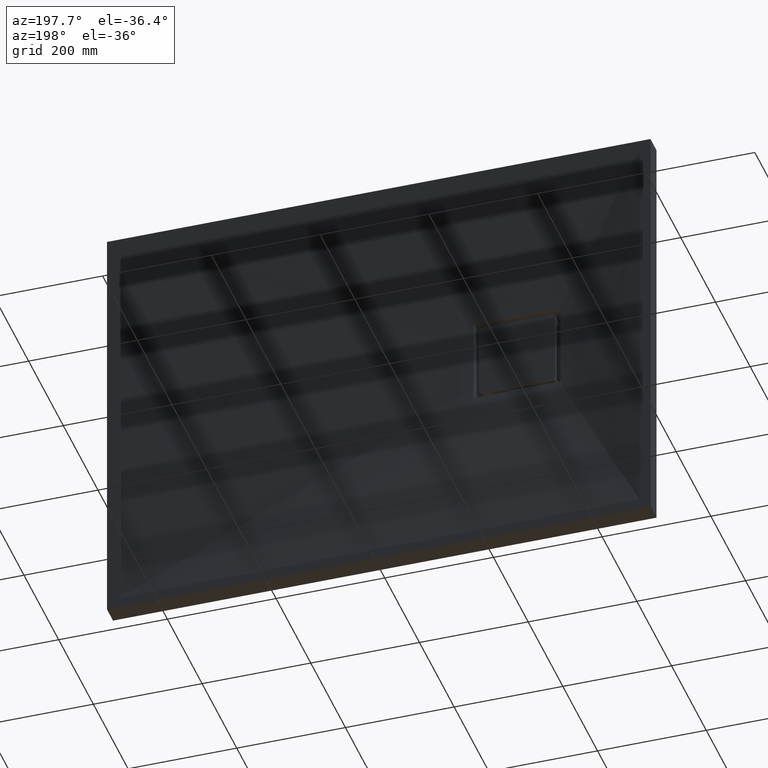
[diagram: clean part render]
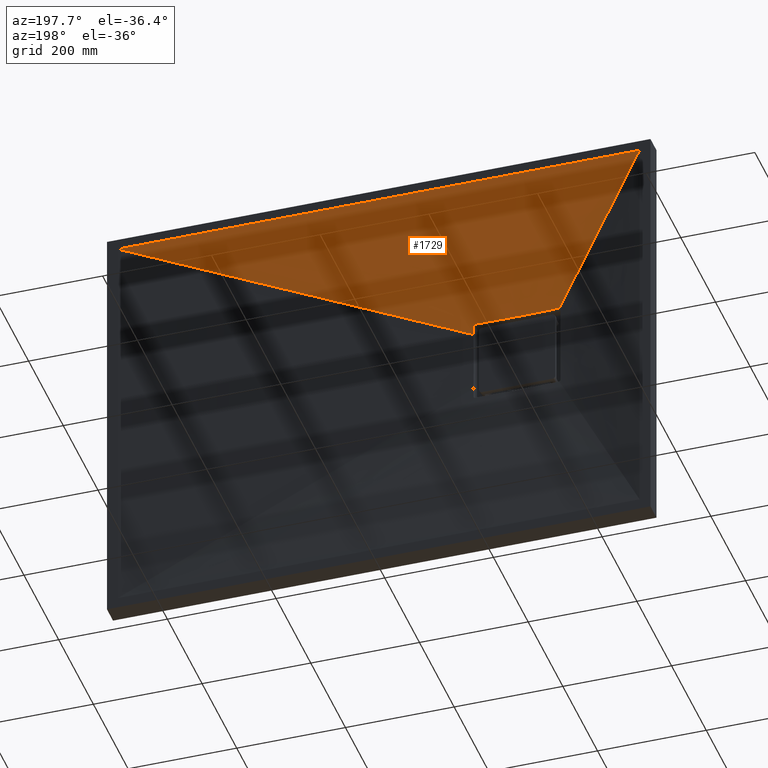
[diagram: same view with one face highlighted and labeled with its STEP entity id]
A machine part, auxiliary view. The second image highlights one B-rep face of the part: STEP entity #1729.
In plain terms, the highlighted face is a freeform B-spline surface patch.
Its self-contained STEP definition (entity closure, byte-faithful):
#3 = EDGE_CURVE ( 'NONE', #1453, #1324, #2685, .T. ) ;
#5 = EDGE_CURVE ( 'NONE', #84, #2924, #3123, .T. ) ;
#20 = CARTESIAN_POINT ( 'NONE',  ( -243.5454148660431300, 19.99998046017195100, 79.99999999999984400 ) ) ;
#49 = CARTESIAN_POINT ( 'NONE',  ( -295.2121201561816400, 20.65407067736280300, 79.99999999999988600 ) ) ;
#68 = CARTESIAN_POINT ( 'NONE',  ( -198.3341412598332700, 20.45009625104063400, 79.99999999999987200 ) ) ;
#78 = CARTESIAN_POINT ( 'NONE',  ( 399.9999999999993200, 35.00000000000000000, 379.9999999999998900 ) ) ;
#84 = VERTEX_POINT ( 'NONE', #1122 ) ;
#108 = CARTESIAN_POINT ( 'NONE',  ( -246.7748734083257000, 20.00000000000000400, 79.99999999999997200 ) ) ;
#127 = CARTESIAN_POINT ( 'NONE',  ( -40.00000000000233800, 34.99999999999999300, 379.9999999999998300 ) ) ;
#180 = CARTESIAN_POINT ( 'NONE',  ( 479.9999999999998900, 35.00000000000000000, 379.9999999999998900 ) ) ;
#185 = CARTESIAN_POINT ( 'NONE',  ( -100.0000000000027600, 35.00000000000000000, 379.9999999999998900 ) ) ;
#261 = ORIENTED_EDGE ( 'NONE', *, *, #5, .T. ) ;
#284 = CARTESIAN_POINT ( 'NONE',  ( 99.99999999999725700, 35.00000000000000000, 379.9999999999997700 ) ) ;
#302 = B_SPLINE_SURFACE_WITH_KNOTS ( 'NONE', 3, 1, ( 
 ( #180, #992 ),
 ( #2383, #2770 ),
 ( #2678, #3001 ),
 ( #78, #2371 ),
 ( #2899, #1743 ),
 ( #627, #1934 ),
 ( #3284, #1918 ),
 ( #2441, #2388 ),
 ( #2302, #909 ),
 ( #2882, #1713 ),
 ( #2099, #1284 ),
 ( #2853, #1192 ),
 ( #2765, #1259 ),
 ( #284, #483 ),
 ( #811, #476 ),
 ( #1391, #1047 ),
 ( #1448, #108 ),
 ( #1235, #1959 ),
 ( #127, #511 ),
 ( #1016, #308 ),
 ( #185, #2434 ),
 ( #1393, #688 ),
 ( #2521, #1613 ),
 ( #842, #1572 ),
 ( #2189, #926 ),
 ( #2366, #1071 ),
 ( #2177, #2270 ),
 ( #1655, #358 ),
 ( #989, #2017 ),
 ( #3121, #3064 ),
 ( #2703, #677 ),
 ( #487, #569 ),
 ( #694, #1493 ),
 ( #1372, #381 ) ),
 .UNSPECIFIED., .F., .F., .F.,
 ( 4, 2, 2, 2, 2, 2, 2, 2, 2, 2, 2, 2, 2, 2, 2, 2, 4 ),
 ( 2, 2 ),
 ( 0.0000000000000000000, 0.06250000000000029100, 0.1250000000000005800, 0.1875000000000008900, 0.2500000000000011700, 0.3125000000000014400, 0.3750000000000017800, 0.4375000000000020500, 0.5000000000000000000, 0.5625000000000021100, 0.6250000000000017800, 0.6875000000000015500, 0.7500000000000012200, 0.8125000000000010000, 0.8750000000000007800, 0.9375000000000003300, 1.000000000000000000 ),
 ( 0.0000000000000000000, 1.000000000000000000 ),
 .UNSPECIFIED. ) ;
#307 = EDGE_CURVE ( 'NONE', #2924, #1453, #2666, .T. ) ;
#308 = CARTESIAN_POINT ( 'NONE',  ( -262.8300887830188200, 19.99999999999999300, 79.02983365478709700 ) ) ;
#332 = CARTESIAN_POINT ( 'NONE',  ( -256.4642332304510400, 20.00001955442599700, 79.99999999999982900 ) ) ;
#358 = CARTESIAN_POINT ( 'NONE',  ( -296.7847326650597200, 20.00000000000001400, 64.96091691246368800 ) ) ;
#381 = CARTESIAN_POINT ( 'NONE',  ( -312.7236659569411500, 20.00000000000000000, 49.65623554924487600 ) ) ;
#419 = B_SPLINE_CURVE_WITH_KNOTS ( 'NONE', 3,
 ( #3244, #1361, #707, #458 ),
 .UNSPECIFIED., .F., .F.,
 ( 4, 4 ),
 ( 0.0000000000000000000, 0.0005606336177244824000 ),
 .UNSPECIFIED. ) ;
#426 = CARTESIAN_POINT ( 'NONE',  ( -275.8395061791168200, 20.22557984842174900, 79.99999999999987200 ) ) ;
#458 = CARTESIAN_POINT ( 'NONE',  ( -328.0570293493647100, 21.37497304805322800, 79.93715373006023100 ) ) ;
#465 = CARTESIAN_POINT ( 'NONE',  ( -170.0000000000001100, 20.76452030899138300, 77.49999999999995700 ) ) ;
#473 = ORIENTED_EDGE ( 'NONE', *, *, #3, .T. ) ;
#476 = CARTESIAN_POINT ( 'NONE',  ( -237.1699112169814300, 20.00000000000000000, 79.02983365478706900 ) ) ;
#483 = CARTESIAN_POINT ( 'NONE',  ( -234.0151894081732600, 20.00000000000000700, 78.45119206130274800 ) ) ;
#487 = CARTESIAN_POINT ( 'NONE',  ( -440.0000000000005100, 35.00000000000000000, 379.9999999999998900 ) ) ;
#511 = CARTESIAN_POINT ( 'NONE',  ( -256.4501675587621900, 20.00000000000000000, 79.80426758104704300 ) ) ;
#569 = CARTESIAN_POINT ( 'NONE',  ( -309.3400329823105000, 20.00000000000000000, 53.72374724790592600 ) ) ;
#627 = CARTESIAN_POINT ( 'NONE',  ( 339.9999999999988100, 35.00000000000000000, 379.9999999999997700 ) ) ;
#677 = CARTESIAN_POINT ( 'NONE',  ( -305.5323295782333200, 19.99999999999999600, 57.65102691464428400 ) ) ;
#688 = CARTESIAN_POINT ( 'NONE',  ( -272.1587811559881500, 20.00000000000000400, 76.93563623690276600 ) ) ;
#694 = CARTESIAN_POINT ( 'NONE',  ( -460.0000000000002800, 35.00000000000000000, 379.9999999999998900 ) ) ;
#699 = CARTESIAN_POINT ( 'NONE',  ( -170.0000000000001100, 20.76842549124645700, 77.66503540768954400 ) ) ;
#707 = CARTESIAN_POINT ( 'NONE',  ( -327.8737041317899600, 21.37280744696774800, 79.97905405231252000 ) ) ;
#741 = CARTESIAN_POINT ( 'NONE',  ( -170.0000000000001100, 20.76452030899138300, 77.49999999999995700 ) ) ;
#770 = CARTESIAN_POINT ( 'NONE',  ( -328.0570293493647100, 21.37497304805322800, 79.93715373006023100 ) ) ;
#783 = CARTESIAN_POINT ( 'NONE',  ( -224.1686988898929100, 20.14841508178050200, 79.99999999999990100 ) ) ;
#811 = CARTESIAN_POINT ( 'NONE',  ( 79.99999999999714400, 35.00000000000000000, 379.9999999999997700 ) ) ;
#842 = CARTESIAN_POINT ( 'NONE',  ( -200.0000000000021900, 35.00000000000000000, 379.9999999999998900 ) ) ;
#863 = ORIENTED_EDGE ( 'NONE', *, *, #2659, .T. ) ;
#909 = CARTESIAN_POINT ( 'NONE',  ( -210.7276380237891300, 20.00000000000000700, 69.76363625832684100 ) ) ;
#913 = CARTESIAN_POINT ( 'NONE',  ( -321.0421240869801000, 21.23723962745499700, 79.99999999999984400 ) ) ;
#915 = VERTEX_POINT ( 'NONE', #770 ) ;
#926 = CARTESIAN_POINT ( 'NONE',  ( -283.8522910801999600, 20.00000000000000400, 72.54864401073332700 ) ) ;
#989 = CARTESIAN_POINT ( 'NONE',  ( -340.0000000000014200, 35.00000000000000000, 379.9999999999998900 ) ) ;
#992 = CARTESIAN_POINT ( 'NONE',  ( -187.2763340430592200, 20.00000000000000000, 49.65623554924484000 ) ) ;
#1016 = CARTESIAN_POINT ( 'NONE',  ( -80.00000000000287100, 35.00000000000000000, 379.9999999999998300 ) ) ;
#1047 = CARTESIAN_POINT ( 'NONE',  ( -243.5498324412382100, 20.00000000000001100, 79.80426758104702900 ) ) ;
#1071 = CARTESIAN_POINT ( 'NONE',  ( -289.2723619762113600, 20.00000000000000400, 69.76363625832682700 ) ) ;
#1122 = CARTESIAN_POINT ( 'NONE',  ( -480.0000000000001100, 35.00000000000000000, 379.9999999999998900 ) ) ;
#1154 = ORIENTED_EDGE ( 'NONE', *, *, #2358, .T. ) ;
#1192 = CARTESIAN_POINT ( 'NONE',  ( -224.8220933380503100, 20.00000000000000400, 75.99883019869446300 ) ) ;
#1235 = CARTESIAN_POINT ( 'NONE',  ( -20.00000000000167700, 34.99999999999999300, 379.9999999999998300 ) ) ;
#1240 = CARTESIAN_POINT ( 'NONE',  ( -170.0161816622126900, 20.77206845880363800, 77.82732068728169800 ) ) ;
#1259 = CARTESIAN_POINT ( 'NONE',  ( -227.8412188440121900, 20.00000000000000400, 76.93563623690275200 ) ) ;
#1260 = CARTESIAN_POINT ( 'NONE',  ( -170.0795906174382400, 20.77885447385027400, 78.14661486857198700 ) ) ;
#1284 = CARTESIAN_POINT ( 'NONE',  ( -218.9753013388359200, 20.00000000000000700, 73.80526572292660600 ) ) ;
#1286 = CARTESIAN_POINT ( 'NONE',  ( -170.2529096156186800, 20.78766907220749600, 78.60788280416322500 ) ) ;
#1293 = CARTESIAN_POINT ( 'NONE',  ( -170.1275850985812800, 20.78202728389225500, 78.30527451149663400 ) ) ;
#1324 = VERTEX_POINT ( 'NONE', #465 ) ;
#1361 = CARTESIAN_POINT ( 'NONE',  ( -327.6880273140707200, 21.36985348124189700, 79.99999999999998600 ) ) ;
#1370 = CARTESIAN_POINT ( 'NONE',  ( -237.0863967832127900, 20.03855008015882800, 79.99999999999987200 ) ) ;
#1372 = CARTESIAN_POINT ( 'NONE',  ( -480.0000000000001100, 35.00000000000000000, 379.9999999999998900 ) ) ;
#1391 = CARTESIAN_POINT ( 'NONE',  ( 39.99999999999767700, 35.00000000000000000, 379.9999999999997700 ) ) ;
#1393 = CARTESIAN_POINT ( 'NONE',  ( -140.0000000000025000, 35.00000000000000000, 379.9999999999998900 ) ) ;
#1414 = CARTESIAN_POINT ( 'NONE',  ( -170.0000000000000900, 20.38836235817883500, 58.20910777402927000 ) ) ;
#1428 = EDGE_LOOP ( 'NONE', ( #863, #1559, #1154, #1890, #261, #1753, #473 ) ) ;
#1448 = CARTESIAN_POINT ( 'NONE',  ( 19.99999999999832300, 34.99999999999999300, 379.9999999999998300 ) ) ;
#1453 = VERTEX_POINT ( 'NONE', #1414 ) ;
#1481 = CARTESIAN_POINT ( 'NONE',  ( -170.3296043701109600, 20.79013589528431500, 78.75141587104053500 ) ) ;
#1489 = CARTESIAN_POINT ( 'NONE',  ( -170.6162907987169600, 20.79612162006704800, 79.15173015449319400 ) ) ;
#1493 = CARTESIAN_POINT ( 'NONE',  ( -311.1014674510713600, 20.00000000000000000, 51.70532839876462100 ) ) ;
#1496 = CARTESIAN_POINT ( 'NONE',  ( -170.5108071518232000, 20.79436201166134500, 79.02307934307300700 ) ) ;
#1499 = VERTEX_POINT ( 'NONE', #2702 ) ;
#1551 = VERTEX_POINT ( 'NONE', #1928 ) ;
#1559 = ORIENTED_EDGE ( 'NONE', *, *, #3278, .T. ) ;
#1572 = CARTESIAN_POINT ( 'NONE',  ( -281.0246986611645100, 20.00000000000000400, 73.80526572292660600 ) ) ;
#1613 = CARTESIAN_POINT ( 'NONE',  ( -275.1779066619500300, 20.00000000000000400, 75.99883019869447800 ) ) ;
#1645 = CARTESIAN_POINT ( 'NONE',  ( -171.8417886672649800, 20.79941008393002400, 79.93365878335254100 ) ) ;
#1655 = CARTESIAN_POINT ( 'NONE',  ( -320.0000000000014800, 35.00000000000000000, 379.9999999999998900 ) ) ;
#1709 = CARTESIAN_POINT ( 'NONE',  ( -170.8467300722953400, 20.79875872361820700, 79.38235793737747800 ) ) ;
#1713 = CARTESIAN_POINT ( 'NONE',  ( -216.1477089198004400, 20.00000000000000700, 72.54864401073328400 ) ) ;
#1729 = ADVANCED_FACE ( 'NONE', ( #2226 ), #302, .F. ) ;
#1743 = CARTESIAN_POINT ( 'NONE',  ( -196.5140164712901800, 20.00000000000000000, 59.55981682815150400 ) ) ;
#1753 = ORIENTED_EDGE ( 'NONE', *, *, #307, .T. ) ;
#1779 = CARTESIAN_POINT ( 'NONE',  ( -171.2454783021590900, 20.80061104854990700, 79.66867808394920300 ) ) ;
#1854 = CARTESIAN_POINT ( 'NONE',  ( -172.5000000000000900, 20.79248822107058100, 79.99999999999990100 ) ) ;
#1855 = CARTESIAN_POINT ( 'NONE',  ( -170.9724682591397300, 20.79966286584232500, 79.48585903397486200 ) ) ;
#1890 = ORIENTED_EDGE ( 'NONE', *, *, #2576, .F. ) ;
#1918 = CARTESIAN_POINT ( 'NONE',  ( -203.2152673349407300, 20.00000000000000700, 64.96091691246365900 ) ) ;
#1928 = CARTESIAN_POINT ( 'NONE',  ( -172.5000000000000900, 20.79248822107058100, 79.99999999999990100 ) ) ;
#1934 = CARTESIAN_POINT ( 'NONE',  ( -200.8877858409699700, 19.99999999999999300, 63.21481341453088700 ) ) ;
#1959 = CARTESIAN_POINT ( 'NONE',  ( -253.2251265916746100, 20.00000000000000700, 79.99999999999997200 ) ) ;
#2010 = CARTESIAN_POINT ( 'NONE',  ( -171.3909018003860500, 20.80064026695351100, 79.74641614392682200 ) ) ;
#2015 = CARTESIAN_POINT ( 'NONE',  ( -172.1698625813423900, 20.79679689109385200, 79.99999999999988600 ) ) ;
#2017 = CARTESIAN_POINT ( 'NONE',  ( -299.1122141590302600, 20.00000000000000400, 63.21481341453094400 ) ) ;
#2050 = CARTESIAN_POINT ( 'NONE',  ( -217.7100180670745100, 20.21978597271118300, 79.99999999999990100 ) ) ;
#2099 = CARTESIAN_POINT ( 'NONE',  ( 199.9999999999979000, 35.00000000000000000, 379.9999999999997700 ) ) ;
#2105 = CARTESIAN_POINT ( 'NONE',  ( -327.5000000000001100, 21.36610154175615900, 79.99999999999991500 ) ) ;
#2142 = B_SPLINE_CURVE_WITH_KNOTS ( 'NONE', 3,
 ( #741, #699, #1240, #1260, #1293, #1286, #1481, #1496, #1489, #1709, #1855, #1779, #2010, #1645, #2015, #2328 ),
 .UNSPECIFIED., .F., .F.,
 ( 4, 2, 2, 2, 2, 2, 2, 4 ),
 ( 0.0000000000000000000, 0.0004882176725597237800, 0.0009764353451194475600, 0.001464653017679171300, 0.001952870690238895100, 0.002441088362798618900, 0.002929306035358342600, 0.003905741380477790200 ),
 .UNSPECIFIED. ) ;
#2164 = CARTESIAN_POINT ( 'NONE',  ( -170.0000000000000900, 20.48830352454134700, 64.63990133756590200 ) ) ;
#2177 = CARTESIAN_POINT ( 'NONE',  ( -280.0000000000017100, 35.00000000000000000, 379.9999999999998900 ) ) ;
#2189 = CARTESIAN_POINT ( 'NONE',  ( -220.0000000000020200, 35.00000000000000000, 379.9999999999998900 ) ) ;
#2192 = CARTESIAN_POINT ( 'NONE',  ( -185.4170973556876700, 20.62390536127104900, 79.99999999999988600 ) ) ;
#2226 = FACE_OUTER_BOUND ( 'NONE', #1428, .T. ) ;
#2270 = CARTESIAN_POINT ( 'NONE',  ( -291.8648188520230600, 20.00000000000001400, 68.23539315587191800 ) ) ;
#2302 = CARTESIAN_POINT ( 'NONE',  ( 259.9999999999982400, 35.00000000000000000, 379.9999999999997700 ) ) ;
#2328 = CARTESIAN_POINT ( 'NONE',  ( -172.5000000000000900, 20.79248822107058100, 79.99999999999990100 ) ) ;
#2358 = EDGE_CURVE ( 'NONE', #1499, #915, #419, .T. ) ;
#2366 = CARTESIAN_POINT ( 'NONE',  ( -260.0000000000017600, 35.00000000000000000, 379.9999999999998900 ) ) ;
#2371 = CARTESIAN_POINT ( 'NONE',  ( -194.4676704217669700, 19.99999999999999600, 57.65102691464427000 ) ) ;
#2383 = CARTESIAN_POINT ( 'NONE',  ( 459.9999999999996600, 35.00000000000000000, 379.9999999999998900 ) ) ;
#2388 = CARTESIAN_POINT ( 'NONE',  ( -208.1351811479775100, 20.00000000000000700, 68.23539315587189000 ) ) ;
#2396 = CARTESIAN_POINT ( 'NONE',  ( -170.0000000000001100, 20.61237449994344200, 71.07022438789788100 ) ) ;
#2434 = CARTESIAN_POINT ( 'NONE',  ( -265.9848105918272300, 20.00000000000000400, 78.45119206130274800 ) ) ;
#2441 = CARTESIAN_POINT ( 'NONE',  ( 279.9999999999983500, 35.00000000000000000, 379.9999999999997700 ) ) ;
#2497 = CARTESIAN_POINT ( 'NONE',  ( -396.3618329784706000, 27.50000000000000400, 214.8281177746223700 ) ) ;
#2521 = CARTESIAN_POINT ( 'NONE',  ( -160.0000000000024200, 35.00000000000000000, 379.9999999999998900 ) ) ;
#2529 = B_SPLINE_CURVE_WITH_KNOTS ( 'NONE', 3,
 ( #1854, #2192, #68, #2050, #783, #1370, #20, #332, #2604, #426, #3025, #49, #2624, #3149, #913, #2105 ),
 .UNSPECIFIED., .F., .F.,
 ( 4, 2, 2, 2, 2, 2, 2, 4 ),
 ( 0.0000000000000000000, 0.03875443777390784300, 0.05813165666086176500, 0.07750887554781568700, 0.09688609443476961500, 0.1162633133217235300, 0.1356405322086774400, 0.1550177510956313700 ),
 .UNSPECIFIED. ) ;
#2576 = EDGE_CURVE ( 'NONE', #84, #915, #2843, .T. ) ;
#2585 = CARTESIAN_POINT ( 'NONE',  ( 479.9999999999998900, 35.00000000000000000, 379.9999999999998900 ) ) ;
#2604 = CARTESIAN_POINT ( 'NONE',  ( -262.9230823950588300, 20.04278092150050800, 79.99999999999987200 ) ) ;
#2624 = CARTESIAN_POINT ( 'NONE',  ( -301.6694429351675200, 20.80790986736645100, 79.99999999999991500 ) ) ;
#2659 = EDGE_CURVE ( 'NONE', #1324, #1551, #2142, .T. ) ;
#2666 = LINE ( 'NONE', #3150, #2740 ) ;
#2678 = CARTESIAN_POINT ( 'NONE',  ( 439.9999999999995500, 35.00000000000000000, 379.9999999999998900 ) ) ;
#2685 = B_SPLINE_CURVE_WITH_KNOTS ( 'NONE', 3,
 ( #3231, #2164, #2396, #3207 ),
 .UNSPECIFIED., .F., .F.,
 ( 4, 4 ),
 ( 0.0000000000000000000, 0.01929455927659338600 ),
 .UNSPECIFIED. ) ;
#2702 = CARTESIAN_POINT ( 'NONE',  ( -327.5000000000001100, 21.36610154175615900, 79.99999999999991500 ) ) ;
#2703 = CARTESIAN_POINT ( 'NONE',  ( -400.0000000000009100, 35.00000000000000000, 379.9999999999998900 ) ) ;
#2740 = VECTOR ( 'NONE', #3141, 1000.000000000000000 ) ;
#2765 = CARTESIAN_POINT ( 'NONE',  ( 139.9999999999975300, 35.00000000000000000, 379.9999999999997700 ) ) ;
#2770 = CARTESIAN_POINT ( 'NONE',  ( -188.8985325489290400, 19.99999999999999600, 51.70532839876459300 ) ) ;
#2843 = LINE ( 'NONE', #2497, #3103 ) ;
#2853 = CARTESIAN_POINT ( 'NONE',  ( 159.9999999999976400, 35.00000000000000000, 379.9999999999997700 ) ) ;
#2882 = CARTESIAN_POINT ( 'NONE',  ( 219.9999999999980100, 35.00000000000000000, 379.9999999999997700 ) ) ;
#2899 = CARTESIAN_POINT ( 'NONE',  ( 379.9999999999990900, 35.00000000000000000, 379.9999999999998300 ) ) ;
#2912 = DIRECTION ( 'NONE',  ( 0.4513843069708415900, -0.04047652432901683400, -0.8914111612486662600 ) ) ;
#2924 = VERTEX_POINT ( 'NONE', #2585 ) ;
#2930 = CARTESIAN_POINT ( 'NONE',  ( -480.0000000000001100, 35.00000000000000000, 379.9999999999998900 ) ) ;
#3001 = CARTESIAN_POINT ( 'NONE',  ( -190.6599670176899200, 20.00000000000000000, 53.72374724790587700 ) ) ;
#3025 = CARTESIAN_POINT ( 'NONE',  ( -282.2971273536367700, 20.36207244520809900, 79.99999999999991500 ) ) ;
#3064 = CARTESIAN_POINT ( 'NONE',  ( -303.4859835287102200, 19.99999999999999300, 59.55981682815152600 ) ) ;
#3085 = VECTOR ( 'NONE', #3198, 1000.000000000000000 ) ;
#3103 = VECTOR ( 'NONE', #2912, 1000.000000000000200 ) ;
#3121 = CARTESIAN_POINT ( 'NONE',  ( -380.0000000000011400, 35.00000000000000000, 379.9999999999998900 ) ) ;
#3123 = LINE ( 'NONE', #2930, #3085 ) ;
#3141 = DIRECTION ( 'NONE',  ( -0.8960082084434998200, -0.02014176502442122100, -0.4435804320566573700 ) ) ;
#3149 = CARTESIAN_POINT ( 'NONE',  ( -314.5844573501496500, 21.09893217005126300, 79.99999999999988600 ) ) ;
#3150 = CARTESIAN_POINT ( 'NONE',  ( 146.3618329784703200, 27.50000000000000400, 214.8281177746223400 ) ) ;
#3198 = DIRECTION ( 'NONE',  ( 1.000000000000000000, 0.0000000000000000000, 0.0000000000000000000 ) ) ;
#3207 = CARTESIAN_POINT ( 'NONE',  ( -170.0000000000001100, 20.76452030899138300, 77.49999999999995700 ) ) ;
#3231 = CARTESIAN_POINT ( 'NONE',  ( -170.0000000000000900, 20.38836235817883500, 58.20910777402927000 ) ) ;
#3244 = CARTESIAN_POINT ( 'NONE',  ( -327.5000000000001100, 21.36610154175615900, 79.99999999999991500 ) ) ;
#3278 = EDGE_CURVE ( 'NONE', #1551, #1499, #2529, .T. ) ;
#3284 = CARTESIAN_POINT ( 'NONE',  ( 319.9999999999986900, 35.00000000000000000, 379.9999999999997700 ) ) ;